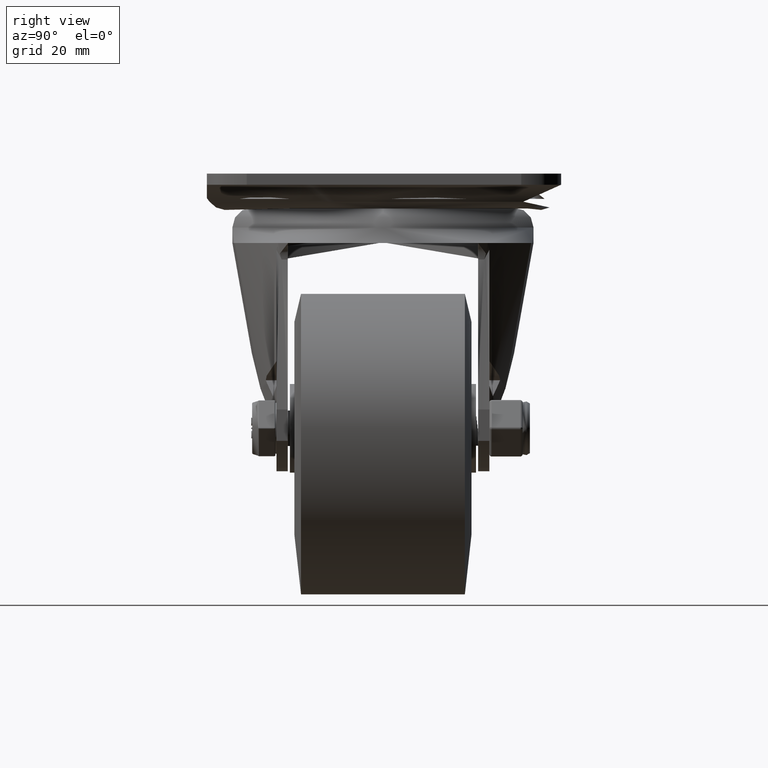
[diagram: clean part render]
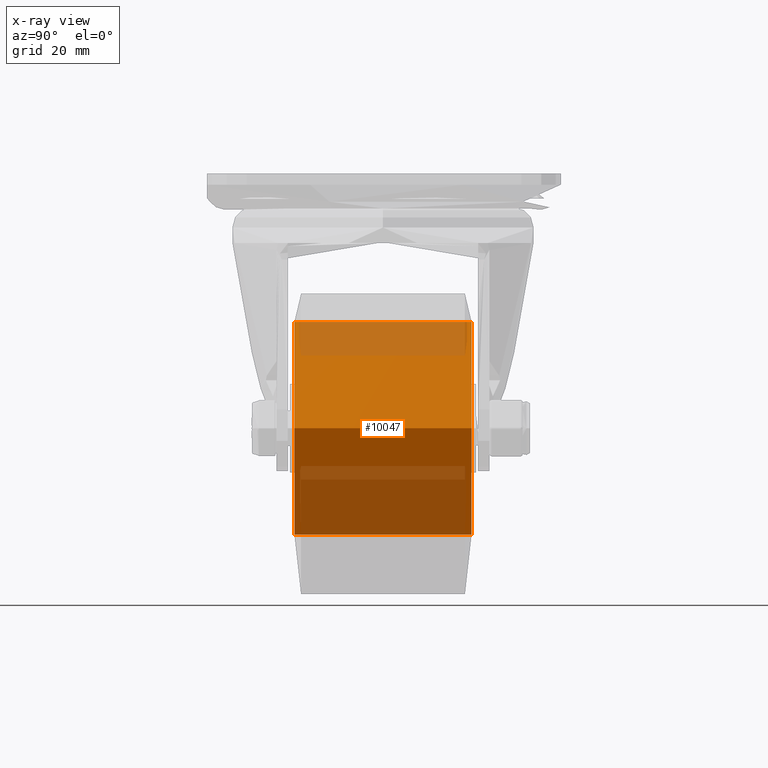
[diagram: x-ray — body ghosted, one internal face saturated and labeled with its STEP entity id]
A machine part, right view, then the same camera in x-ray: the body is ghosted and one INTERNAL B-rep face — a face not visible from any outside direction — is saturated and labeled: STEP entity #10047.
In plain terms, the highlighted cylindrical surface (bore or boss wall) has radius 24 mm, axis along (0, -1, -0).
Its self-contained STEP definition (entity closure, byte-faithful):
#1292=CYLINDRICAL_SURFACE('',#10996,24.);
#1589=LINE('',#16440,#2148);
#2148=VECTOR('',#12508,24.);
#2707=FACE_OUTER_BOUND('',#3341,.T.);
#3341=EDGE_LOOP('',(#7619,#7620,#7621,#7622));
#4028=CIRCLE('',#10991,24.);
#4030=CIRCLE('',#10995,24.);
#4630=VERTEX_POINT('',#16428);
#4632=VERTEX_POINT('',#16436);
#5730=EDGE_CURVE('',#4630,#4630,#4028,.T.);
#5734=EDGE_CURVE('',#4632,#4632,#4030,.T.);
#5735=EDGE_CURVE('',#4632,#4630,#1589,.T.);
#7619=ORIENTED_EDGE('',*,*,#5734,.F.);
#7620=ORIENTED_EDGE('',*,*,#5735,.T.);
#7621=ORIENTED_EDGE('',*,*,#5730,.T.);
#7622=ORIENTED_EDGE('',*,*,#5735,.F.);
#10047=ADVANCED_FACE('',(#2707),#1292,.F.);
#10991=AXIS2_PLACEMENT_3D('',#16430,#12494,#12495);
#10995=AXIS2_PLACEMENT_3D('',#16438,#12504,#12505);
#10996=AXIS2_PLACEMENT_3D('',#16439,#12506,#12507);
#12494=DIRECTION('center_axis',(0.,-1.,0.));
#12495=DIRECTION('ref_axis',(0.,0.,1.));
#12504=DIRECTION('center_axis',(0.,-1.,0.));
#12505=DIRECTION('ref_axis',(0.,0.,1.));
#12506=DIRECTION('center_axis',(0.,-1.,0.));
#12507=DIRECTION('ref_axis',(0.,0.,1.));
#12508=DIRECTION('',(0.,-1.,0.));
#16428=CARTESIAN_POINT('',(-2.93915231795365E-15,-20.,-24.));
#16430=CARTESIAN_POINT('Origin',(0.,-20.,0.));
#16436=CARTESIAN_POINT('',(-2.93915231795365E-15,20.,-24.));
#16438=CARTESIAN_POINT('Origin',(0.,20.,0.));
#16439=CARTESIAN_POINT('Origin',(0.,0.,0.));
#16440=CARTESIAN_POINT('',(2.93915231795365E-15,0.,-24.));